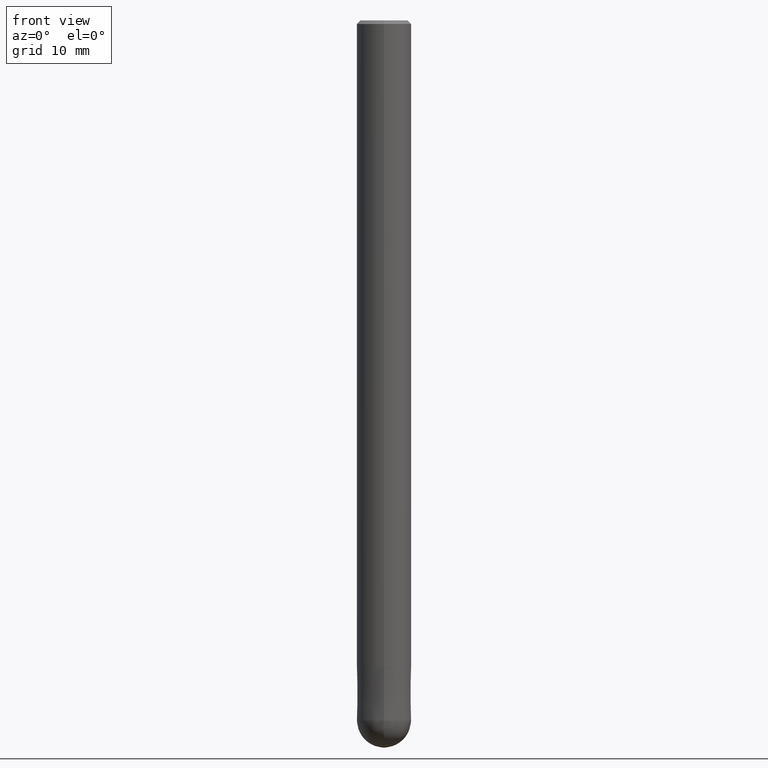
[diagram: clean part render]
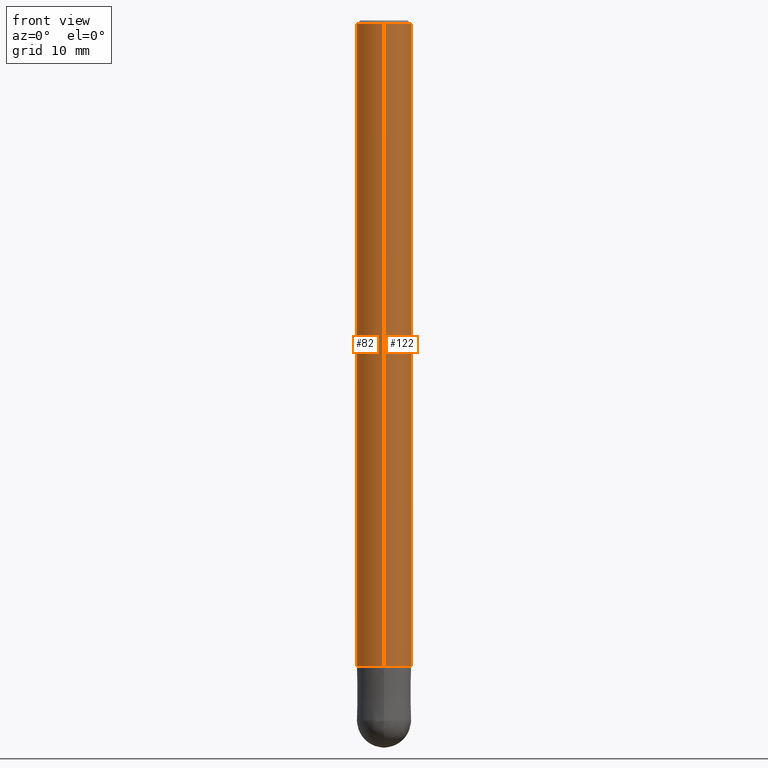
[diagram: same view with one multi-face feature highlighted, each face labeled with its STEP entity id]
A machine part, front view. The highlighted faces form ONE feature: a constant-radius fillet chain: 2 tangent blend faces with common blend radius 3 mm. The faces share edges in the B-rep.
Their STEP definitions:
[1] entity #82 (Cylinder):
#62=VERTEX_POINT('',#154);
#66=VERTEX_POINT('',#158);
#68=VERTEX_POINT('',#160);
#72=EDGE_CURVE('',#128,#68,#164,.T.);
#82=ADVANCED_FACE('',(#176),#177,.T.);
#86=EDGE_CURVE('',#66,#62,#181,.T.);
#94=EDGE_CURVE('',#68,#62,#190,.T.);
#114=EDGE_CURVE('',#66,#128,#215,.T.);
#128=VERTEX_POINT('',#231);
#154=CARTESIAN_POINT('',(0.0,3.0,-71.0));
#158=CARTESIAN_POINT('',(3.67381906146713E-016,-3.0,-71.0));
#160=CARTESIAN_POINT('',(0.0,3.0,-0.400000000000006));
#164=CIRCLE('',#258,3.0);
#176=FACE_OUTER_BOUND('',#272,.T.);
#177=CYLINDRICAL_SURFACE('',#273,3.0);
#181=CIRCLE('',#278,3.0);
#190=LINE('',#290,#291);
#215=LINE('',#324,#325);
#231=CARTESIAN_POINT('',(3.67381906146713E-016,-3.0,-0.400000000000006));
#258=AXIS2_PLACEMENT_3D('',#356,#357,#358);
#272=EDGE_LOOP('',(#380,#381,#382,#383));
#273=AXIS2_PLACEMENT_3D('',#384,#385,#386);
#278=AXIS2_PLACEMENT_3D('',#387,#388,#389);
#290=CARTESIAN_POINT('',(-3.67381906146713E-016,3.0,-35.7));
#291=VECTOR('',#404,1.0);
#324=CARTESIAN_POINT('',(3.67381906146713E-016,-3.0,-35.7));
#325=VECTOR('',#446,1.0);
#356=CARTESIAN_POINT('',(0.0,0.0,-0.400000000000006));
#357=DIRECTION('',(0.0,0.0,-1.0));
#358=DIRECTION('',(0.0,1.0,0.0));
#380=ORIENTED_EDGE('',*,*,#94,.T.);
#381=ORIENTED_EDGE('',*,*,#86,.F.);
#382=ORIENTED_EDGE('',*,*,#114,.T.);
#383=ORIENTED_EDGE('',*,*,#72,.T.);
#384=CARTESIAN_POINT('',(0.0,0.0,-35.7));
#385=DIRECTION('',(-0.0,-0.0,1.0));
#386=DIRECTION('',(0.0,1.0,0.0));
#387=CARTESIAN_POINT('',(0.0,0.0,-71.0));
#388=DIRECTION('',(0.0,0.0,-1.0));
#389=DIRECTION('',(0.0,1.0,0.0));
#404=DIRECTION('',(0.0,0.0,-1.0));
#446=DIRECTION('',(-0.0,-0.0,1.0));
[2] entity #122 (Cylinder):
#62=VERTEX_POINT('',#154);
#66=VERTEX_POINT('',#158);
#68=VERTEX_POINT('',#160);
#90=EDGE_CURVE('',#68,#128,#186,.T.);
#94=EDGE_CURVE('',#68,#62,#190,.T.);
#114=EDGE_CURVE('',#66,#128,#215,.T.);
#122=ADVANCED_FACE('',(#224),#225,.T.);
#128=VERTEX_POINT('',#231);
#130=EDGE_CURVE('',#62,#66,#233,.T.);
#154=CARTESIAN_POINT('',(0.0,3.0,-71.0));
#158=CARTESIAN_POINT('',(3.67381906146713E-016,-3.0,-71.0));
#160=CARTESIAN_POINT('',(0.0,3.0,-0.400000000000006));
#186=CIRCLE('',#284,3.0);
#190=LINE('',#290,#291);
#215=LINE('',#324,#325);
#224=FACE_OUTER_BOUND('',#335,.T.);
#225=CYLINDRICAL_SURFACE('',#336,3.0);
#231=CARTESIAN_POINT('',(3.67381906146713E-016,-3.0,-0.400000000000006));
#233=CIRCLE('',#347,3.0);
#284=AXIS2_PLACEMENT_3D('',#398,#399,#400);
#290=CARTESIAN_POINT('',(-3.67381906146713E-016,3.0,-35.7));
#291=VECTOR('',#404,1.0);
#324=CARTESIAN_POINT('',(3.67381906146713E-016,-3.0,-35.7));
#325=VECTOR('',#446,1.0);
#335=EDGE_LOOP('',(#457,#458,#459,#460));
#336=AXIS2_PLACEMENT_3D('',#461,#462,#463);
#347=AXIS2_PLACEMENT_3D('',#465,#466,#467);
#398=CARTESIAN_POINT('',(0.0,0.0,-0.400000000000006));
#399=DIRECTION('',(0.0,0.0,-1.0));
#400=DIRECTION('',(0.0,1.0,0.0));
#404=DIRECTION('',(0.0,0.0,-1.0));
#446=DIRECTION('',(-0.0,-0.0,1.0));
#457=ORIENTED_EDGE('',*,*,#94,.F.);
#458=ORIENTED_EDGE('',*,*,#90,.T.);
#459=ORIENTED_EDGE('',*,*,#114,.F.);
#460=ORIENTED_EDGE('',*,*,#130,.F.);
#461=CARTESIAN_POINT('',(0.0,0.0,-35.7));
#462=DIRECTION('',(-0.0,-0.0,1.0));
#463=DIRECTION('',(0.0,1.0,0.0));
#465=CARTESIAN_POINT('',(0.0,0.0,-71.0));
#466=DIRECTION('',(0.0,0.0,-1.0));
#467=DIRECTION('',(0.0,1.0,0.0));